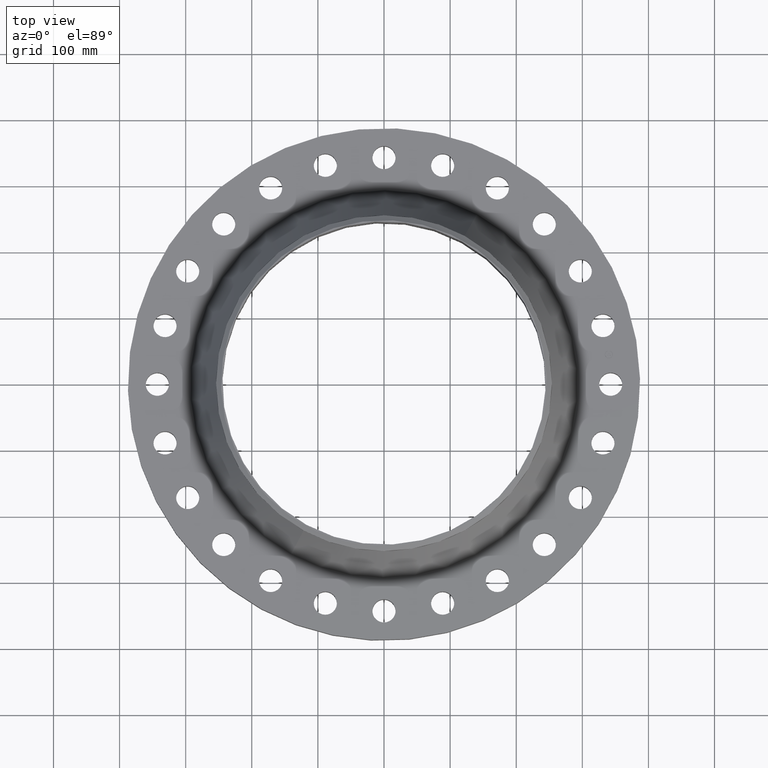
[diagram: clean part render]
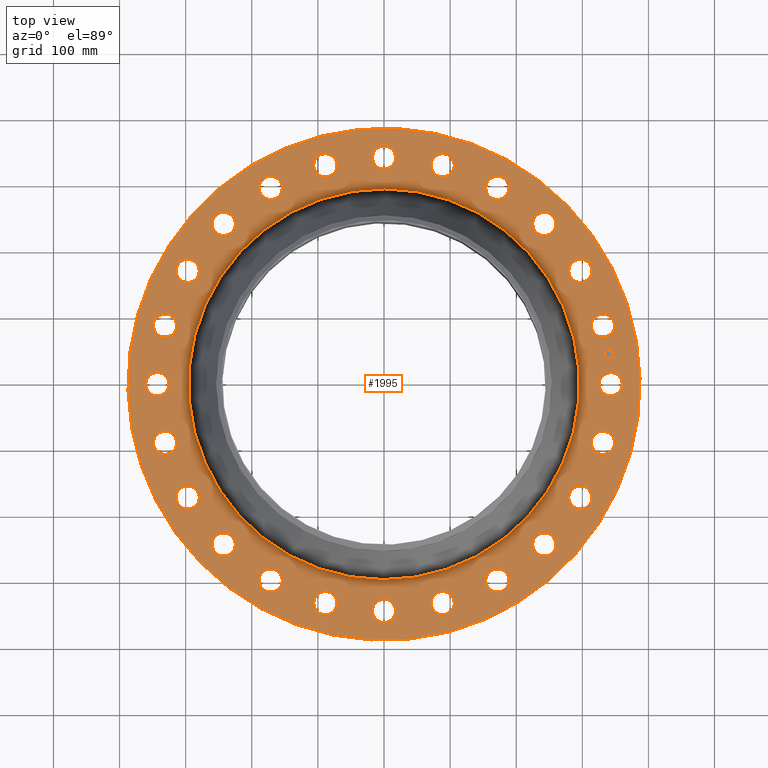
[diagram: same view with one face highlighted and labeled with its STEP entity id]
A machine part, top view. The second image highlights one B-rep face of the part: STEP entity #1995.
In plain terms, the highlighted planar face has unit normal (0, 0, -1).
Its self-contained STEP definition (entity closure, byte-faithful):
#65=AXIS2_PLACEMENT_3D('Circle Axis2P3D',#63,#64,$) ;
#82=AXIS2_PLACEMENT_3D('Circle Axis2P3D',#80,#81,$) ;
#115=AXIS2_PLACEMENT_3D('Circle Axis2P3D',#113,#114,$) ;
#139=AXIS2_PLACEMENT_3D('Circle Axis2P3D',#137,#138,$) ;
#156=AXIS2_PLACEMENT_3D('Circle Axis2P3D',#154,#155,$) ;
#191=AXIS2_PLACEMENT_3D('Circle Axis2P3D',#189,#190,$) ;
#900=AXIS2_PLACEMENT_3D('Circle Axis2P3D',#898,#899,$) ;
#912=AXIS2_PLACEMENT_3D('Circle Axis2P3D',#910,#911,$) ;
#943=AXIS2_PLACEMENT_3D('Circle Axis2P3D',#941,#942,$) ;
#955=AXIS2_PLACEMENT_3D('Circle Axis2P3D',#953,#954,$) ;
#986=AXIS2_PLACEMENT_3D('Circle Axis2P3D',#984,#985,$) ;
#998=AXIS2_PLACEMENT_3D('Circle Axis2P3D',#996,#997,$) ;
#1029=AXIS2_PLACEMENT_3D('Circle Axis2P3D',#1027,#1028,$) ;
#1041=AXIS2_PLACEMENT_3D('Circle Axis2P3D',#1039,#1040,$) ;
#1072=AXIS2_PLACEMENT_3D('Circle Axis2P3D',#1070,#1071,$) ;
#1084=AXIS2_PLACEMENT_3D('Circle Axis2P3D',#1082,#1083,$) ;
#1115=AXIS2_PLACEMENT_3D('Circle Axis2P3D',#1113,#1114,$) ;
#1127=AXIS2_PLACEMENT_3D('Circle Axis2P3D',#1125,#1126,$) ;
#1158=AXIS2_PLACEMENT_3D('Circle Axis2P3D',#1156,#1157,$) ;
#1170=AXIS2_PLACEMENT_3D('Circle Axis2P3D',#1168,#1169,$) ;
#1201=AXIS2_PLACEMENT_3D('Circle Axis2P3D',#1199,#1200,$) ;
#1213=AXIS2_PLACEMENT_3D('Circle Axis2P3D',#1211,#1212,$) ;
#1244=AXIS2_PLACEMENT_3D('Circle Axis2P3D',#1242,#1243,$) ;
#1256=AXIS2_PLACEMENT_3D('Circle Axis2P3D',#1254,#1255,$) ;
#1287=AXIS2_PLACEMENT_3D('Circle Axis2P3D',#1285,#1286,$) ;
#1299=AXIS2_PLACEMENT_3D('Circle Axis2P3D',#1297,#1298,$) ;
#1330=AXIS2_PLACEMENT_3D('Circle Axis2P3D',#1328,#1329,$) ;
#1342=AXIS2_PLACEMENT_3D('Circle Axis2P3D',#1340,#1341,$) ;
#1373=AXIS2_PLACEMENT_3D('Circle Axis2P3D',#1371,#1372,$) ;
#1385=AXIS2_PLACEMENT_3D('Circle Axis2P3D',#1383,#1384,$) ;
#1416=AXIS2_PLACEMENT_3D('Circle Axis2P3D',#1414,#1415,$) ;
#1428=AXIS2_PLACEMENT_3D('Circle Axis2P3D',#1426,#1427,$) ;
#1459=AXIS2_PLACEMENT_3D('Circle Axis2P3D',#1457,#1458,$) ;
#1471=AXIS2_PLACEMENT_3D('Circle Axis2P3D',#1469,#1470,$) ;
#1502=AXIS2_PLACEMENT_3D('Circle Axis2P3D',#1500,#1501,$) ;
#1514=AXIS2_PLACEMENT_3D('Circle Axis2P3D',#1512,#1513,$) ;
#1545=AXIS2_PLACEMENT_3D('Circle Axis2P3D',#1543,#1544,$) ;
#1557=AXIS2_PLACEMENT_3D('Circle Axis2P3D',#1555,#1556,$) ;
#1588=AXIS2_PLACEMENT_3D('Circle Axis2P3D',#1586,#1587,$) ;
#1600=AXIS2_PLACEMENT_3D('Circle Axis2P3D',#1598,#1599,$) ;
#1631=AXIS2_PLACEMENT_3D('Circle Axis2P3D',#1629,#1630,$) ;
#1643=AXIS2_PLACEMENT_3D('Circle Axis2P3D',#1641,#1642,$) ;
#1674=AXIS2_PLACEMENT_3D('Circle Axis2P3D',#1672,#1673,$) ;
#1686=AXIS2_PLACEMENT_3D('Circle Axis2P3D',#1684,#1685,$) ;
#1717=AXIS2_PLACEMENT_3D('Circle Axis2P3D',#1715,#1716,$) ;
#1729=AXIS2_PLACEMENT_3D('Circle Axis2P3D',#1727,#1728,$) ;
#1760=AXIS2_PLACEMENT_3D('Circle Axis2P3D',#1758,#1759,$) ;
#1772=AXIS2_PLACEMENT_3D('Circle Axis2P3D',#1770,#1771,$) ;
#1803=AXIS2_PLACEMENT_3D('Circle Axis2P3D',#1801,#1802,$) ;
#1815=AXIS2_PLACEMENT_3D('Circle Axis2P3D',#1813,#1814,$) ;
#1846=AXIS2_PLACEMENT_3D('Circle Axis2P3D',#1844,#1845,$) ;
#1858=AXIS2_PLACEMENT_3D('Circle Axis2P3D',#1856,#1857,$) ;
#1871=AXIS2_PLACEMENT_3D('Plane Axis2P3D',#1868,#1869,#1870) ;
#1979=AXIS2_PLACEMENT_3D('Circle Axis2P3D',#1977,#1978,$) ;
#1988=AXIS2_PLACEMENT_3D('Circle Axis2P3D',#1986,#1987,$) ;
#46=CARTESIAN_POINT('Vertex',(12.8944680323,0.330803621638,2.44000000001)) ;
#60=CARTESIAN_POINT('Vertex',(14.1055319678,-0.330803621638,2.44000000001)) ;
#63=CARTESIAN_POINT('Axis2P3D Location',(13.5000000001,0.,2.44000000001)) ;
#80=CARTESIAN_POINT('Axis2P3D Location',(13.5000000001,0.,2.44000000001)) ;
#110=CARTESIAN_POINT('Vertex',(-7.31123946374,-13.3831340689,2.44000000001)) ;
#113=CARTESIAN_POINT('Axis2P3D Location',(0.,0.,2.44000000001)) ;
#117=CARTESIAN_POINT('Vertex',(7.31123946374,13.3831340689,2.44000000001)) ;
#137=CARTESIAN_POINT('Axis2P3D Location',(0.,0.,2.44000000001)) ;
#154=CARTESIAN_POINT('Axis2P3D Location',(0.,0.,2.44000000001)) ;
#158=CARTESIAN_POINT('Vertex',(5.57913456957,10.2125373274,2.44000000001)) ;
#160=CARTESIAN_POINT('Vertex',(-5.57913456957,-10.2125373274,2.44000000001)) ;
#189=CARTESIAN_POINT('Axis2P3D Location',(0.,0.,2.44000000001)) ;
#888=CARTESIAN_POINT('Vertex',(-12.5407179662,3.01780214167,2.44000000001)) ;
#895=CARTESIAN_POINT('Vertex',(-13.5392793437,3.97031207613,2.44000000001)) ;
#898=CARTESIAN_POINT('Axis2P3D Location',(-13.039998655,3.4940571089,2.44000000001)) ;
#910=CARTESIAN_POINT('Axis2P3D Location',(-13.039998655,3.4940571089,2.44000000001)) ;
#931=CARTESIAN_POINT('Vertex',(11.3323386951,-6.16074967617,2.44000000001)) ;
#938=CARTESIAN_POINT('Vertex',(12.0503472072,-7.33925032388,2.44000000001)) ;
#941=CARTESIAN_POINT('Axis2P3D Location',(11.6913429511,-6.75000000003,2.44000000001)) ;
#953=CARTESIAN_POINT('Axis2P3D Location',(11.6913429511,-6.75000000003,2.44000000001)) ;
#974=CARTESIAN_POINT('Vertex',(-11.3323386951,6.16074967617,2.44000000001)) ;
#981=CARTESIAN_POINT('Vertex',(-12.0503472072,7.33925032388,2.44000000001)) ;
#984=CARTESIAN_POINT('Axis2P3D Location',(-11.6913429511,6.75000000003,2.44000000001)) ;
#996=CARTESIAN_POINT('Axis2P3D Location',(-11.6913429511,6.75000000003,2.44000000001)) ;
#1017=CARTESIAN_POINT('Vertex',(9.35167926957,-8.88385230136,2.44000000001)) ;
#1024=CARTESIAN_POINT('Vertex',(9.74020382255,-10.2080307907,2.44000000001)) ;
#1027=CARTESIAN_POINT('Axis2P3D Location',(9.54594154606,-9.54594154606,2.44000000001)) ;
#1039=CARTESIAN_POINT('Axis2P3D Location',(9.54594154606,-9.54594154606,2.44000000001)) ;
#1060=CARTESIAN_POINT('Vertex',(-9.35167926957,8.88385230136,2.44000000001)) ;
#1067=CARTESIAN_POINT('Vertex',(-9.74020382255,10.2080307907,2.44000000001)) ;
#1070=CARTESIAN_POINT('Axis2P3D Location',(-9.54594154606,9.54594154606,2.44000000001)) ;
#1082=CARTESIAN_POINT('Axis2P3D Location',(-9.54594154606,9.54594154606,2.44000000001)) ;
#1103=CARTESIAN_POINT('Vertex',(6.73371835618,-11.0015350735,2.44000000001)) ;
#1110=CARTESIAN_POINT('Vertex',(6.76628164388,-12.3811508288,2.44000000001)) ;
#1113=CARTESIAN_POINT('Axis2P3D Location',(6.75000000003,-11.6913429511,2.44000000001)) ;
#1125=CARTESIAN_POINT('Axis2P3D Location',(6.75000000003,-11.6913429511,2.44000000001)) ;
#1146=CARTESIAN_POINT('Vertex',(-6.73371835618,11.0015350735,2.44000000001)) ;
#1153=CARTESIAN_POINT('Vertex',(-6.76628164388,12.3811508288,2.44000000001)) ;
#1156=CARTESIAN_POINT('Axis2P3D Location',(-6.75000000003,11.6913429511,2.44000000001)) ;
#1168=CARTESIAN_POINT('Axis2P3D Location',(-6.75000000003,11.6913429511,2.44000000001)) ;
#1189=CARTESIAN_POINT('Vertex',(3.65686566481,-12.3694814112,2.44000000001)) ;
#1196=CARTESIAN_POINT('Vertex',(3.33124855299,-13.7105158987,2.44000000001)) ;
#1199=CARTESIAN_POINT('Axis2P3D Location',(3.4940571089,-13.039998655,2.44000000001)) ;
#1211=CARTESIAN_POINT('Axis2P3D Location',(3.4940571089,-13.039998655,2.44000000001)) ;
#1232=CARTESIAN_POINT('Vertex',(-3.65686566481,12.3694814112,2.44000000001)) ;
#1239=CARTESIAN_POINT('Vertex',(-3.33124855299,13.7105158987,2.44000000001)) ;
#1242=CARTESIAN_POINT('Axis2P3D Location',(-3.4940571089,13.039998655,2.44000000001)) ;
#1254=CARTESIAN_POINT('Axis2P3D Location',(-3.4940571089,13.039998655,2.44000000001)) ;
#1275=CARTESIAN_POINT('Vertex',(0.330803621638,-12.8944680323,2.44000000001)) ;
#1282=CARTESIAN_POINT('Vertex',(-0.330803621638,-14.1055319678,2.44000000001)) ;
#1285=CARTESIAN_POINT('Axis2P3D Location',(-1.41129328698E-015,-13.5000000001,2.44000000001)) ;
#1297=CARTESIAN_POINT('Axis2P3D Location',(-1.41129328698E-015,-13.5000000001,2.44000000001)) ;
#1318=CARTESIAN_POINT('Vertex',(-0.330803621638,12.8944680323,2.44000000001)) ;
#1325=CARTESIAN_POINT('Vertex',(0.330803621638,14.1055319678,2.44000000001)) ;
#1328=CARTESIAN_POINT('Axis2P3D Location',(-2.47990976828E-015,13.5000000001,2.44000000001)) ;
#1340=CARTESIAN_POINT('Axis2P3D Location',(-2.47990976828E-015,13.5000000001,2.44000000001)) ;
#1361=CARTESIAN_POINT('Vertex',(-3.01780214167,-12.5407179662,2.44000000001)) ;
#1368=CARTESIAN_POINT('Vertex',(-3.97031207613,-13.5392793437,2.44000000001)) ;
#1371=CARTESIAN_POINT('Axis2P3D Location',(-3.4940571089,-13.039998655,2.44000000001)) ;
#1383=CARTESIAN_POINT('Axis2P3D Location',(-3.4940571089,-13.039998655,2.44000000001)) ;
#1404=CARTESIAN_POINT('Vertex',(3.01780214167,12.5407179662,2.44000000001)) ;
#1411=CARTESIAN_POINT('Vertex',(3.97031207613,13.5392793437,2.44000000001)) ;
#1414=CARTESIAN_POINT('Axis2P3D Location',(3.4940571089,13.039998655,2.44000000001)) ;
#1426=CARTESIAN_POINT('Axis2P3D Location',(3.4940571089,13.039998655,2.44000000001)) ;
#1447=CARTESIAN_POINT('Vertex',(-6.16074967617,-11.3323386951,2.44000000001)) ;
#1454=CARTESIAN_POINT('Vertex',(-7.33925032388,-12.0503472072,2.44000000001)) ;
#1457=CARTESIAN_POINT('Axis2P3D Location',(-6.75000000003,-11.6913429511,2.44000000001)) ;
#1469=CARTESIAN_POINT('Axis2P3D Location',(-6.75000000003,-11.6913429511,2.44000000001)) ;
#1490=CARTESIAN_POINT('Vertex',(6.16074967617,11.3323386951,2.44000000001)) ;
#1497=CARTESIAN_POINT('Vertex',(7.33925032388,12.0503472072,2.44000000001)) ;
#1500=CARTESIAN_POINT('Axis2P3D Location',(6.75000000003,11.6913429511,2.44000000001)) ;
#1512=CARTESIAN_POINT('Axis2P3D Location',(6.75000000003,11.6913429511,2.44000000001)) ;
#1533=CARTESIAN_POINT('Vertex',(-8.88385230136,-9.35167926957,2.44000000001)) ;
#1540=CARTESIAN_POINT('Vertex',(-10.2080307907,-9.74020382255,2.44000000001)) ;
#1543=CARTESIAN_POINT('Axis2P3D Location',(-9.54594154606,-9.54594154606,2.44000000001)) ;
#1555=CARTESIAN_POINT('Axis2P3D Location',(-9.54594154606,-9.54594154606,2.44000000001)) ;
#1576=CARTESIAN_POINT('Vertex',(8.88385230136,9.35167926957,2.44000000001)) ;
#1583=CARTESIAN_POINT('Vertex',(10.2080307907,9.74020382255,2.44000000001)) ;
#1586=CARTESIAN_POINT('Axis2P3D Location',(9.54594154606,9.54594154606,2.44000000001)) ;
#1598=CARTESIAN_POINT('Axis2P3D Location',(9.54594154606,9.54594154606,2.44000000001)) ;
#1619=CARTESIAN_POINT('Vertex',(-11.0015350735,-6.73371835618,2.44000000001)) ;
#1626=CARTESIAN_POINT('Vertex',(-12.3811508288,-6.76628164388,2.44000000001)) ;
#1629=CARTESIAN_POINT('Axis2P3D Location',(-11.6913429511,-6.75000000003,2.44000000001)) ;
#1641=CARTESIAN_POINT('Axis2P3D Location',(-11.6913429511,-6.75000000003,2.44000000001)) ;
#1662=CARTESIAN_POINT('Vertex',(11.0015350735,6.73371835618,2.44000000001)) ;
#1669=CARTESIAN_POINT('Vertex',(12.3811508288,6.76628164388,2.44000000001)) ;
#1672=CARTESIAN_POINT('Axis2P3D Location',(11.6913429511,6.75000000003,2.44000000001)) ;
#1684=CARTESIAN_POINT('Axis2P3D Location',(11.6913429511,6.75000000003,2.44000000001)) ;
#1705=CARTESIAN_POINT('Vertex',(-12.3694814112,-3.65686566481,2.44000000001)) ;
#1712=CARTESIAN_POINT('Vertex',(-13.7105158987,-3.33124855299,2.44000000001)) ;
#1715=CARTESIAN_POINT('Axis2P3D Location',(-13.039998655,-3.4940571089,2.44000000001)) ;
#1727=CARTESIAN_POINT('Axis2P3D Location',(-13.039998655,-3.4940571089,2.44000000001)) ;
#1748=CARTESIAN_POINT('Vertex',(12.3694814112,3.65686566481,2.44000000001)) ;
#1755=CARTESIAN_POINT('Vertex',(13.7105158987,3.33124855299,2.44000000001)) ;
#1758=CARTESIAN_POINT('Axis2P3D Location',(13.039998655,3.4940571089,2.44000000001)) ;
#1770=CARTESIAN_POINT('Axis2P3D Location',(13.039998655,3.4940571089,2.44000000001)) ;
#1791=CARTESIAN_POINT('Vertex',(-12.8944680323,-0.330803621638,2.44000000001)) ;
#1798=CARTESIAN_POINT('Vertex',(-14.1055319678,0.330803621638,2.44000000001)) ;
#1801=CARTESIAN_POINT('Axis2P3D Location',(-13.5000000001,-1.65327317886E-015,2.44000000001)) ;
#1813=CARTESIAN_POINT('Axis2P3D Location',(-13.5000000001,-1.65327317886E-015,2.44000000001)) ;
#1834=CARTESIAN_POINT('Vertex',(12.5407179662,-3.01780214167,2.44000000001)) ;
#1841=CARTESIAN_POINT('Vertex',(13.5392793437,-3.97031207613,2.44000000001)) ;
#1844=CARTESIAN_POINT('Axis2P3D Location',(13.039998655,-3.4940571089,2.44000000001)) ;
#1856=CARTESIAN_POINT('Axis2P3D Location',(13.039998655,-3.4940571089,2.44000000001)) ;
#1868=CARTESIAN_POINT('Axis2P3D Location',(0.,15.2500000001,2.44000000001)) ;
#1977=CARTESIAN_POINT('Axis2P3D Location',(13.3845056286,1.76210359498,2.44000000001)) ;
#1981=CARTESIAN_POINT('Vertex',(13.352200396,2.00748619817,2.44000000001)) ;
#1983=CARTESIAN_POINT('Vertex',(13.4168108612,1.51672099179,2.44000000001)) ;
#1986=CARTESIAN_POINT('Axis2P3D Location',(13.3845056286,1.76210359498,2.44000000001)) ;
#64=DIRECTION('Axis2P3D Direction',(0.,-0.,-0.0393700787402)) ;
#81=DIRECTION('Axis2P3D Direction',(0.,-0.,-0.0393700787402)) ;
#114=DIRECTION('Axis2P3D Direction',(0.,0.,-0.0393700787402)) ;
#138=DIRECTION('Axis2P3D Direction',(0.,0.,-0.0393700787402)) ;
#155=DIRECTION('Axis2P3D Direction',(0.,0.,-0.0393700787402)) ;
#190=DIRECTION('Axis2P3D Direction',(0.,0.,-0.0393700787402)) ;
#899=DIRECTION('Axis2P3D Direction',(0.,0.,-0.0393700787402)) ;
#911=DIRECTION('Axis2P3D Direction',(0.,0.,-0.0393700787402)) ;
#942=DIRECTION('Axis2P3D Direction',(0.,-0.,-0.0393700787402)) ;
#954=DIRECTION('Axis2P3D Direction',(0.,-0.,-0.0393700787402)) ;
#985=DIRECTION('Axis2P3D Direction',(0.,0.,-0.0393700787402)) ;
#997=DIRECTION('Axis2P3D Direction',(0.,0.,-0.0393700787402)) ;
#1028=DIRECTION('Axis2P3D Direction',(0.,-0.,-0.0393700787402)) ;
#1040=DIRECTION('Axis2P3D Direction',(0.,-0.,-0.0393700787402)) ;
#1071=DIRECTION('Axis2P3D Direction',(0.,0.,-0.0393700787402)) ;
#1083=DIRECTION('Axis2P3D Direction',(0.,0.,-0.0393700787402)) ;
#1114=DIRECTION('Axis2P3D Direction',(0.,-0.,-0.0393700787402)) ;
#1126=DIRECTION('Axis2P3D Direction',(0.,-0.,-0.0393700787402)) ;
#1157=DIRECTION('Axis2P3D Direction',(0.,0.,-0.0393700787402)) ;
#1169=DIRECTION('Axis2P3D Direction',(0.,0.,-0.0393700787402)) ;
#1200=DIRECTION('Axis2P3D Direction',(0.,-0.,-0.0393700787402)) ;
#1212=DIRECTION('Axis2P3D Direction',(0.,-0.,-0.0393700787402)) ;
#1243=DIRECTION('Axis2P3D Direction',(0.,0.,-0.0393700787402)) ;
#1255=DIRECTION('Axis2P3D Direction',(0.,0.,-0.0393700787402)) ;
#1286=DIRECTION('Axis2P3D Direction',(0.,-0.,-0.0393700787402)) ;
#1298=DIRECTION('Axis2P3D Direction',(0.,-0.,-0.0393700787402)) ;
#1329=DIRECTION('Axis2P3D Direction',(0.,0.,-0.0393700787402)) ;
#1341=DIRECTION('Axis2P3D Direction',(0.,0.,-0.0393700787402)) ;
#1372=DIRECTION('Axis2P3D Direction',(-0.,0.,-0.0393700787402)) ;
#1384=DIRECTION('Axis2P3D Direction',(-0.,0.,-0.0393700787402)) ;
#1415=DIRECTION('Axis2P3D Direction',(0.,0.,-0.0393700787402)) ;
#1427=DIRECTION('Axis2P3D Direction',(0.,0.,-0.0393700787402)) ;
#1458=DIRECTION('Axis2P3D Direction',(-0.,0.,-0.0393700787402)) ;
#1470=DIRECTION('Axis2P3D Direction',(-0.,0.,-0.0393700787402)) ;
#1501=DIRECTION('Axis2P3D Direction',(0.,0.,-0.0393700787402)) ;
#1513=DIRECTION('Axis2P3D Direction',(0.,0.,-0.0393700787402)) ;
#1544=DIRECTION('Axis2P3D Direction',(-0.,0.,-0.0393700787402)) ;
#1556=DIRECTION('Axis2P3D Direction',(-0.,0.,-0.0393700787402)) ;
#1587=DIRECTION('Axis2P3D Direction',(0.,0.,-0.0393700787402)) ;
#1599=DIRECTION('Axis2P3D Direction',(0.,0.,-0.0393700787402)) ;
#1630=DIRECTION('Axis2P3D Direction',(-0.,0.,-0.0393700787402)) ;
#1642=DIRECTION('Axis2P3D Direction',(-0.,0.,-0.0393700787402)) ;
#1673=DIRECTION('Axis2P3D Direction',(0.,0.,-0.0393700787402)) ;
#1685=DIRECTION('Axis2P3D Direction',(0.,0.,-0.0393700787402)) ;
#1716=DIRECTION('Axis2P3D Direction',(-0.,0.,-0.0393700787402)) ;
#1728=DIRECTION('Axis2P3D Direction',(-0.,0.,-0.0393700787402)) ;
#1759=DIRECTION('Axis2P3D Direction',(0.,0.,-0.0393700787402)) ;
#1771=DIRECTION('Axis2P3D Direction',(0.,0.,-0.0393700787402)) ;
#1802=DIRECTION('Axis2P3D Direction',(-0.,0.,-0.0393700787402)) ;
#1814=DIRECTION('Axis2P3D Direction',(-0.,0.,-0.0393700787402)) ;
#1845=DIRECTION('Axis2P3D Direction',(0.,-0.,-0.0393700787402)) ;
#1857=DIRECTION('Axis2P3D Direction',(0.,-0.,-0.0393700787402)) ;
#1869=DIRECTION('Axis2P3D Direction',(0.,0.,-0.0393700787402)) ;
#1870=DIRECTION('Axis2P3D XDirection',(0.0393700787402,0.,0.)) ;
#1978=DIRECTION('Axis2P3D Direction',(0.,0.,-0.0393700787402)) ;
#1987=DIRECTION('Axis2P3D Direction',(0.,0.,-0.0393700787402)) ;
#1874=ORIENTED_EDGE('',*,*,#141,.F.) ;
#1875=ORIENTED_EDGE('',*,*,#119,.F.) ;
#1878=ORIENTED_EDGE('',*,*,#67,.T.) ;
#1879=ORIENTED_EDGE('',*,*,#84,.T.) ;
#1882=ORIENTED_EDGE('',*,*,#193,.T.) ;
#1883=ORIENTED_EDGE('',*,*,#162,.T.) ;
#1886=ORIENTED_EDGE('',*,*,#1860,.T.) ;
#1887=ORIENTED_EDGE('',*,*,#1848,.T.) ;
#1890=ORIENTED_EDGE('',*,*,#957,.T.) ;
#1891=ORIENTED_EDGE('',*,*,#945,.T.) ;
#1894=ORIENTED_EDGE('',*,*,#1043,.T.) ;
#1895=ORIENTED_EDGE('',*,*,#1031,.T.) ;
#1898=ORIENTED_EDGE('',*,*,#1129,.T.) ;
#1899=ORIENTED_EDGE('',*,*,#1117,.T.) ;
#1902=ORIENTED_EDGE('',*,*,#1215,.T.) ;
#1903=ORIENTED_EDGE('',*,*,#1203,.T.) ;
#1906=ORIENTED_EDGE('',*,*,#1301,.T.) ;
#1907=ORIENTED_EDGE('',*,*,#1289,.T.) ;
#1910=ORIENTED_EDGE('',*,*,#1387,.T.) ;
#1911=ORIENTED_EDGE('',*,*,#1375,.T.) ;
#1914=ORIENTED_EDGE('',*,*,#1473,.T.) ;
#1915=ORIENTED_EDGE('',*,*,#1461,.T.) ;
#1918=ORIENTED_EDGE('',*,*,#1559,.T.) ;
#1919=ORIENTED_EDGE('',*,*,#1547,.T.) ;
#1922=ORIENTED_EDGE('',*,*,#1645,.T.) ;
#1923=ORIENTED_EDGE('',*,*,#1633,.T.) ;
#1926=ORIENTED_EDGE('',*,*,#1731,.T.) ;
#1927=ORIENTED_EDGE('',*,*,#1719,.T.) ;
#1930=ORIENTED_EDGE('',*,*,#1817,.T.) ;
#1931=ORIENTED_EDGE('',*,*,#1805,.T.) ;
#1934=ORIENTED_EDGE('',*,*,#914,.T.) ;
#1935=ORIENTED_EDGE('',*,*,#902,.T.) ;
#1938=ORIENTED_EDGE('',*,*,#1000,.T.) ;
#1939=ORIENTED_EDGE('',*,*,#988,.T.) ;
#1942=ORIENTED_EDGE('',*,*,#1086,.T.) ;
#1943=ORIENTED_EDGE('',*,*,#1074,.T.) ;
#1946=ORIENTED_EDGE('',*,*,#1172,.T.) ;
#1947=ORIENTED_EDGE('',*,*,#1160,.T.) ;
#1950=ORIENTED_EDGE('',*,*,#1258,.T.) ;
#1951=ORIENTED_EDGE('',*,*,#1246,.T.) ;
#1954=ORIENTED_EDGE('',*,*,#1344,.T.) ;
#1955=ORIENTED_EDGE('',*,*,#1332,.T.) ;
#1958=ORIENTED_EDGE('',*,*,#1430,.T.) ;
#1959=ORIENTED_EDGE('',*,*,#1418,.T.) ;
#1962=ORIENTED_EDGE('',*,*,#1516,.T.) ;
#1963=ORIENTED_EDGE('',*,*,#1504,.T.) ;
#1966=ORIENTED_EDGE('',*,*,#1602,.T.) ;
#1967=ORIENTED_EDGE('',*,*,#1590,.T.) ;
#1970=ORIENTED_EDGE('',*,*,#1688,.T.) ;
#1971=ORIENTED_EDGE('',*,*,#1676,.T.) ;
#1974=ORIENTED_EDGE('',*,*,#1774,.T.) ;
#1975=ORIENTED_EDGE('',*,*,#1762,.T.) ;
#1992=ORIENTED_EDGE('',*,*,#1985,.T.) ;
#1993=ORIENTED_EDGE('',*,*,#1990,.T.) ;
#1880=FACE_BOUND('',#1877,.T.) ;
#1884=FACE_BOUND('',#1881,.T.) ;
#1888=FACE_BOUND('',#1885,.T.) ;
#1892=FACE_BOUND('',#1889,.T.) ;
#1896=FACE_BOUND('',#1893,.T.) ;
#1900=FACE_BOUND('',#1897,.T.) ;
#1904=FACE_BOUND('',#1901,.T.) ;
#1908=FACE_BOUND('',#1905,.T.) ;
#1912=FACE_BOUND('',#1909,.T.) ;
#1916=FACE_BOUND('',#1913,.T.) ;
#1920=FACE_BOUND('',#1917,.T.) ;
#1924=FACE_BOUND('',#1921,.T.) ;
#1928=FACE_BOUND('',#1925,.T.) ;
#1932=FACE_BOUND('',#1929,.T.) ;
#1936=FACE_BOUND('',#1933,.T.) ;
#1940=FACE_BOUND('',#1937,.T.) ;
#1944=FACE_BOUND('',#1941,.T.) ;
#1948=FACE_BOUND('',#1945,.T.) ;
#1952=FACE_BOUND('',#1949,.T.) ;
#1956=FACE_BOUND('',#1953,.T.) ;
#1960=FACE_BOUND('',#1957,.T.) ;
#1964=FACE_BOUND('',#1961,.T.) ;
#1968=FACE_BOUND('',#1965,.T.) ;
#1972=FACE_BOUND('',#1969,.T.) ;
#1976=FACE_BOUND('',#1973,.T.) ;
#1994=FACE_BOUND('',#1991,.T.) ;
#1995=ADVANCED_FACE('PartBody',(#1876,#1880,#1884,#1888,#1892,#1896,#1900,#1904,#1908,#1912,#1916,#1920,#1924,#1928,#1932,#1936,#1940,#1944,#1948,#1952,#1956,#1960,#1964,#1968,#1972,#1976,#1994),#1872,.F.) ;
#66=CIRCLE('generated circle',#65,0.690000000003) ;
#83=CIRCLE('generated circle',#82,0.690000000003) ;
#116=CIRCLE('generated circle',#115,15.2500000001) ;
#140=CIRCLE('generated circle',#139,15.2500000001) ;
#157=CIRCLE('generated circle',#156,11.6371242671) ;
#192=CIRCLE('generated circle',#191,11.6371242671) ;
#901=CIRCLE('generated circle',#900,0.690000000003) ;
#913=CIRCLE('generated circle',#912,0.690000000003) ;
#944=CIRCLE('generated circle',#943,0.690000000003) ;
#956=CIRCLE('generated circle',#955,0.690000000003) ;
#987=CIRCLE('generated circle',#986,0.690000000003) ;
#999=CIRCLE('generated circle',#998,0.690000000003) ;
#1030=CIRCLE('generated circle',#1029,0.690000000003) ;
#1042=CIRCLE('generated circle',#1041,0.690000000003) ;
#1073=CIRCLE('generated circle',#1072,0.690000000003) ;
#1085=CIRCLE('generated circle',#1084,0.690000000003) ;
#1116=CIRCLE('generated circle',#1115,0.690000000003) ;
#1128=CIRCLE('generated circle',#1127,0.690000000003) ;
#1159=CIRCLE('generated circle',#1158,0.690000000003) ;
#1171=CIRCLE('generated circle',#1170,0.690000000003) ;
#1202=CIRCLE('generated circle',#1201,0.690000000003) ;
#1214=CIRCLE('generated circle',#1213,0.690000000003) ;
#1245=CIRCLE('generated circle',#1244,0.690000000003) ;
#1257=CIRCLE('generated circle',#1256,0.690000000003) ;
#1288=CIRCLE('generated circle',#1287,0.690000000003) ;
#1300=CIRCLE('generated circle',#1299,0.690000000003) ;
#1331=CIRCLE('generated circle',#1330,0.690000000003) ;
#1343=CIRCLE('generated circle',#1342,0.690000000003) ;
#1374=CIRCLE('generated circle',#1373,0.690000000003) ;
#1386=CIRCLE('generated circle',#1385,0.690000000003) ;
#1417=CIRCLE('generated circle',#1416,0.690000000003) ;
#1429=CIRCLE('generated circle',#1428,0.690000000003) ;
#1460=CIRCLE('generated circle',#1459,0.690000000003) ;
#1472=CIRCLE('generated circle',#1471,0.690000000003) ;
#1503=CIRCLE('generated circle',#1502,0.690000000003) ;
#1515=CIRCLE('generated circle',#1514,0.690000000003) ;
#1546=CIRCLE('generated circle',#1545,0.690000000003) ;
#1558=CIRCLE('generated circle',#1557,0.690000000003) ;
#1589=CIRCLE('generated circle',#1588,0.690000000003) ;
#1601=CIRCLE('generated circle',#1600,0.690000000003) ;
#1632=CIRCLE('generated circle',#1631,0.690000000003) ;
#1644=CIRCLE('generated circle',#1643,0.690000000003) ;
#1675=CIRCLE('generated circle',#1674,0.690000000003) ;
#1687=CIRCLE('generated circle',#1686,0.690000000003) ;
#1718=CIRCLE('generated circle',#1717,0.690000000003) ;
#1730=CIRCLE('generated circle',#1729,0.690000000003) ;
#1761=CIRCLE('generated circle',#1760,0.690000000003) ;
#1773=CIRCLE('generated circle',#1772,0.690000000003) ;
#1804=CIRCLE('generated circle',#1803,0.690000000003) ;
#1816=CIRCLE('generated circle',#1815,0.690000000003) ;
#1847=CIRCLE('generated circle',#1846,0.690000000003) ;
#1859=CIRCLE('generated circle',#1858,0.690000000003) ;
#1980=CIRCLE('generated circle',#1979,0.247500000001) ;
#1989=CIRCLE('generated circle',#1988,0.247500000001) ;
#67=EDGE_CURVE('',#47,#61,#66,.T.) ;
#84=EDGE_CURVE('',#61,#47,#83,.T.) ;
#119=EDGE_CURVE('',#111,#118,#116,.T.) ;
#141=EDGE_CURVE('',#118,#111,#140,.T.) ;
#162=EDGE_CURVE('',#159,#161,#157,.T.) ;
#193=EDGE_CURVE('',#161,#159,#192,.T.) ;
#902=EDGE_CURVE('',#889,#896,#901,.T.) ;
#914=EDGE_CURVE('',#896,#889,#913,.T.) ;
#945=EDGE_CURVE('',#932,#939,#944,.T.) ;
#957=EDGE_CURVE('',#939,#932,#956,.T.) ;
#988=EDGE_CURVE('',#975,#982,#987,.T.) ;
#1000=EDGE_CURVE('',#982,#975,#999,.T.) ;
#1031=EDGE_CURVE('',#1018,#1025,#1030,.T.) ;
#1043=EDGE_CURVE('',#1025,#1018,#1042,.T.) ;
#1074=EDGE_CURVE('',#1061,#1068,#1073,.T.) ;
#1086=EDGE_CURVE('',#1068,#1061,#1085,.T.) ;
#1117=EDGE_CURVE('',#1104,#1111,#1116,.T.) ;
#1129=EDGE_CURVE('',#1111,#1104,#1128,.T.) ;
#1160=EDGE_CURVE('',#1147,#1154,#1159,.T.) ;
#1172=EDGE_CURVE('',#1154,#1147,#1171,.T.) ;
#1203=EDGE_CURVE('',#1190,#1197,#1202,.T.) ;
#1215=EDGE_CURVE('',#1197,#1190,#1214,.T.) ;
#1246=EDGE_CURVE('',#1233,#1240,#1245,.T.) ;
#1258=EDGE_CURVE('',#1240,#1233,#1257,.T.) ;
#1289=EDGE_CURVE('',#1276,#1283,#1288,.T.) ;
#1301=EDGE_CURVE('',#1283,#1276,#1300,.T.) ;
#1332=EDGE_CURVE('',#1319,#1326,#1331,.T.) ;
#1344=EDGE_CURVE('',#1326,#1319,#1343,.T.) ;
#1375=EDGE_CURVE('',#1362,#1369,#1374,.T.) ;
#1387=EDGE_CURVE('',#1369,#1362,#1386,.T.) ;
#1418=EDGE_CURVE('',#1405,#1412,#1417,.T.) ;
#1430=EDGE_CURVE('',#1412,#1405,#1429,.T.) ;
#1461=EDGE_CURVE('',#1448,#1455,#1460,.T.) ;
#1473=EDGE_CURVE('',#1455,#1448,#1472,.T.) ;
#1504=EDGE_CURVE('',#1491,#1498,#1503,.T.) ;
#1516=EDGE_CURVE('',#1498,#1491,#1515,.T.) ;
#1547=EDGE_CURVE('',#1534,#1541,#1546,.T.) ;
#1559=EDGE_CURVE('',#1541,#1534,#1558,.T.) ;
#1590=EDGE_CURVE('',#1577,#1584,#1589,.T.) ;
#1602=EDGE_CURVE('',#1584,#1577,#1601,.T.) ;
#1633=EDGE_CURVE('',#1620,#1627,#1632,.T.) ;
#1645=EDGE_CURVE('',#1627,#1620,#1644,.T.) ;
#1676=EDGE_CURVE('',#1663,#1670,#1675,.T.) ;
#1688=EDGE_CURVE('',#1670,#1663,#1687,.T.) ;
#1719=EDGE_CURVE('',#1706,#1713,#1718,.T.) ;
#1731=EDGE_CURVE('',#1713,#1706,#1730,.T.) ;
#1762=EDGE_CURVE('',#1749,#1756,#1761,.T.) ;
#1774=EDGE_CURVE('',#1756,#1749,#1773,.T.) ;
#1805=EDGE_CURVE('',#1792,#1799,#1804,.T.) ;
#1817=EDGE_CURVE('',#1799,#1792,#1816,.T.) ;
#1848=EDGE_CURVE('',#1835,#1842,#1847,.T.) ;
#1860=EDGE_CURVE('',#1842,#1835,#1859,.T.) ;
#1985=EDGE_CURVE('',#1982,#1984,#1980,.T.) ;
#1990=EDGE_CURVE('',#1984,#1982,#1989,.T.) ;
#1873=EDGE_LOOP('',(#1874,#1875)) ;
#1877=EDGE_LOOP('',(#1878,#1879)) ;
#1881=EDGE_LOOP('',(#1882,#1883)) ;
#1885=EDGE_LOOP('',(#1886,#1887)) ;
#1889=EDGE_LOOP('',(#1890,#1891)) ;
#1893=EDGE_LOOP('',(#1894,#1895)) ;
#1897=EDGE_LOOP('',(#1898,#1899)) ;
#1901=EDGE_LOOP('',(#1902,#1903)) ;
#1905=EDGE_LOOP('',(#1906,#1907)) ;
#1909=EDGE_LOOP('',(#1910,#1911)) ;
#1913=EDGE_LOOP('',(#1914,#1915)) ;
#1917=EDGE_LOOP('',(#1918,#1919)) ;
#1921=EDGE_LOOP('',(#1922,#1923)) ;
#1925=EDGE_LOOP('',(#1926,#1927)) ;
#1929=EDGE_LOOP('',(#1930,#1931)) ;
#1933=EDGE_LOOP('',(#1934,#1935)) ;
#1937=EDGE_LOOP('',(#1938,#1939)) ;
#1941=EDGE_LOOP('',(#1942,#1943)) ;
#1945=EDGE_LOOP('',(#1946,#1947)) ;
#1949=EDGE_LOOP('',(#1950,#1951)) ;
#1953=EDGE_LOOP('',(#1954,#1955)) ;
#1957=EDGE_LOOP('',(#1958,#1959)) ;
#1961=EDGE_LOOP('',(#1962,#1963)) ;
#1965=EDGE_LOOP('',(#1966,#1967)) ;
#1969=EDGE_LOOP('',(#1970,#1971)) ;
#1973=EDGE_LOOP('',(#1974,#1975)) ;
#1991=EDGE_LOOP('',(#1992,#1993)) ;
#1876=FACE_OUTER_BOUND('',#1873,.T.) ;
#1872=PLANE('',#1871) ;
#47=VERTEX_POINT('',#46) ;
#61=VERTEX_POINT('',#60) ;
#111=VERTEX_POINT('',#110) ;
#118=VERTEX_POINT('',#117) ;
#159=VERTEX_POINT('',#158) ;
#161=VERTEX_POINT('',#160) ;
#889=VERTEX_POINT('',#888) ;
#896=VERTEX_POINT('',#895) ;
#932=VERTEX_POINT('',#931) ;
#939=VERTEX_POINT('',#938) ;
#975=VERTEX_POINT('',#974) ;
#982=VERTEX_POINT('',#981) ;
#1018=VERTEX_POINT('',#1017) ;
#1025=VERTEX_POINT('',#1024) ;
#1061=VERTEX_POINT('',#1060) ;
#1068=VERTEX_POINT('',#1067) ;
#1104=VERTEX_POINT('',#1103) ;
#1111=VERTEX_POINT('',#1110) ;
#1147=VERTEX_POINT('',#1146) ;
#1154=VERTEX_POINT('',#1153) ;
#1190=VERTEX_POINT('',#1189) ;
#1197=VERTEX_POINT('',#1196) ;
#1233=VERTEX_POINT('',#1232) ;
#1240=VERTEX_POINT('',#1239) ;
#1276=VERTEX_POINT('',#1275) ;
#1283=VERTEX_POINT('',#1282) ;
#1319=VERTEX_POINT('',#1318) ;
#1326=VERTEX_POINT('',#1325) ;
#1362=VERTEX_POINT('',#1361) ;
#1369=VERTEX_POINT('',#1368) ;
#1405=VERTEX_POINT('',#1404) ;
#1412=VERTEX_POINT('',#1411) ;
#1448=VERTEX_POINT('',#1447) ;
#1455=VERTEX_POINT('',#1454) ;
#1491=VERTEX_POINT('',#1490) ;
#1498=VERTEX_POINT('',#1497) ;
#1534=VERTEX_POINT('',#1533) ;
#1541=VERTEX_POINT('',#1540) ;
#1577=VERTEX_POINT('',#1576) ;
#1584=VERTEX_POINT('',#1583) ;
#1620=VERTEX_POINT('',#1619) ;
#1627=VERTEX_POINT('',#1626) ;
#1663=VERTEX_POINT('',#1662) ;
#1670=VERTEX_POINT('',#1669) ;
#1706=VERTEX_POINT('',#1705) ;
#1713=VERTEX_POINT('',#1712) ;
#1749=VERTEX_POINT('',#1748) ;
#1756=VERTEX_POINT('',#1755) ;
#1792=VERTEX_POINT('',#1791) ;
#1799=VERTEX_POINT('',#1798) ;
#1835=VERTEX_POINT('',#1834) ;
#1842=VERTEX_POINT('',#1841) ;
#1982=VERTEX_POINT('',#1981) ;
#1984=VERTEX_POINT('',#1983) ;